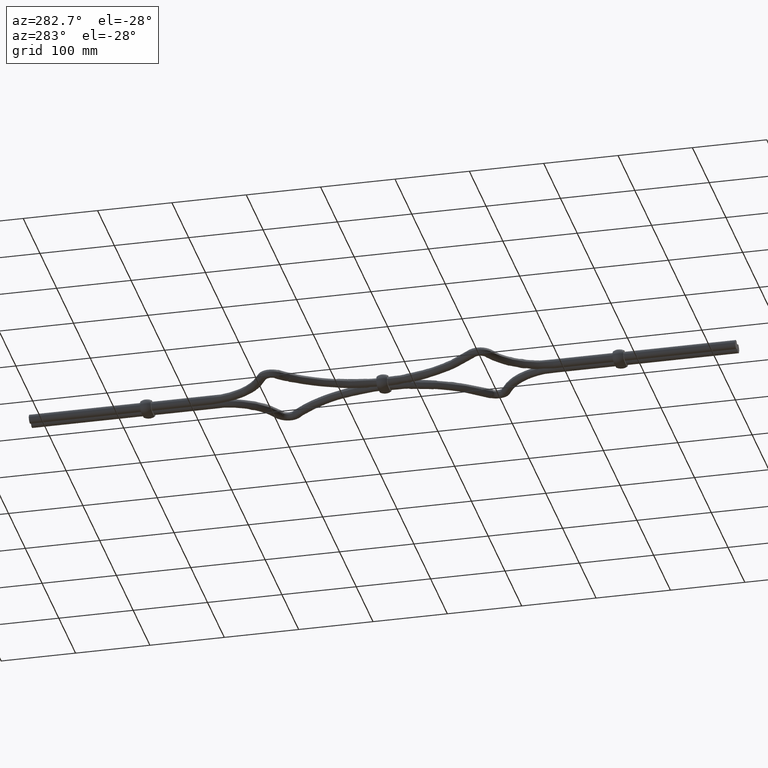
[diagram: clean part render]
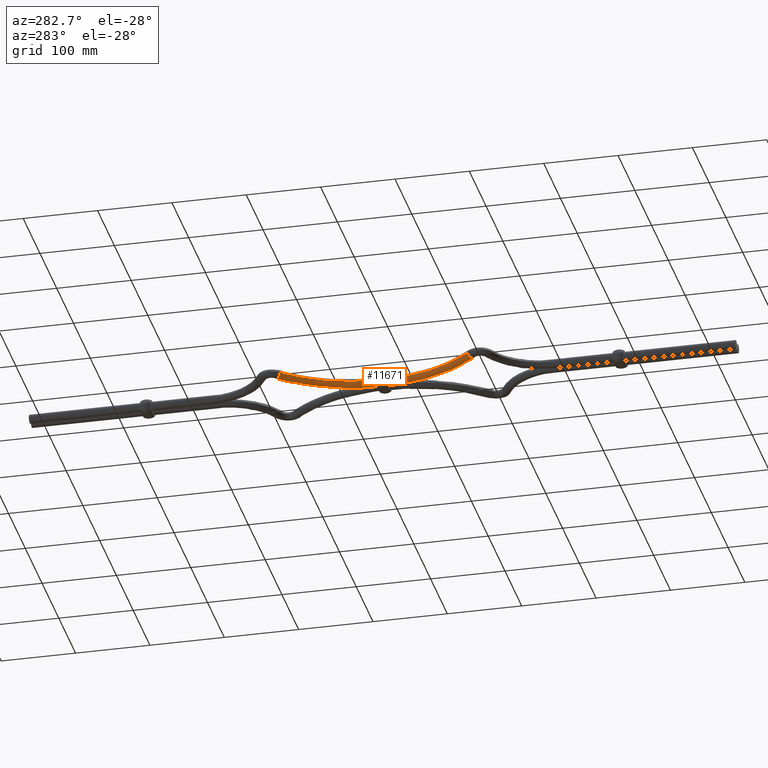
[diagram: same view with one face highlighted and labeled with its STEP entity id]
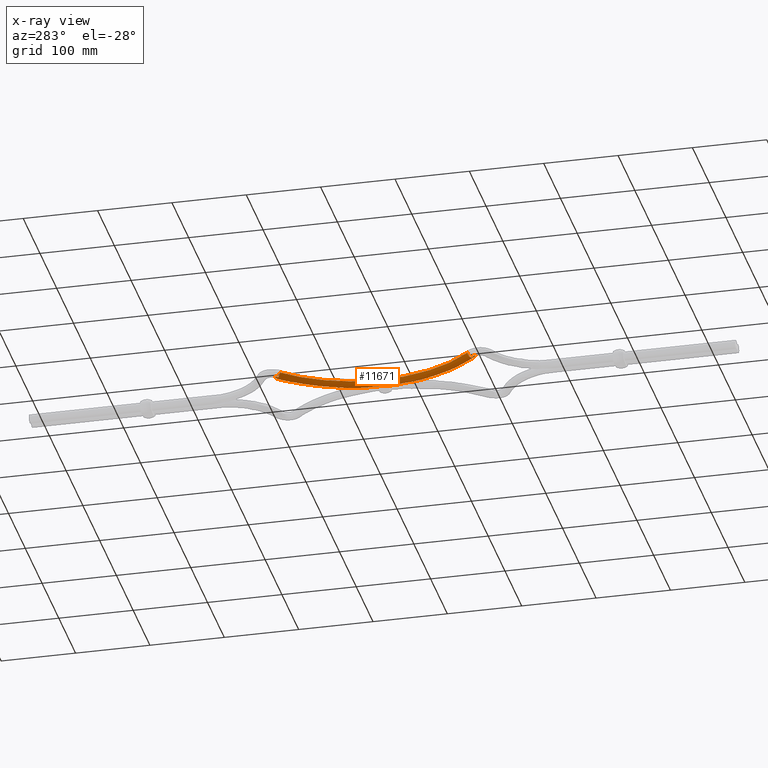
[diagram: x-ray of the same camera — body ghosted, the highlighted face saturated]
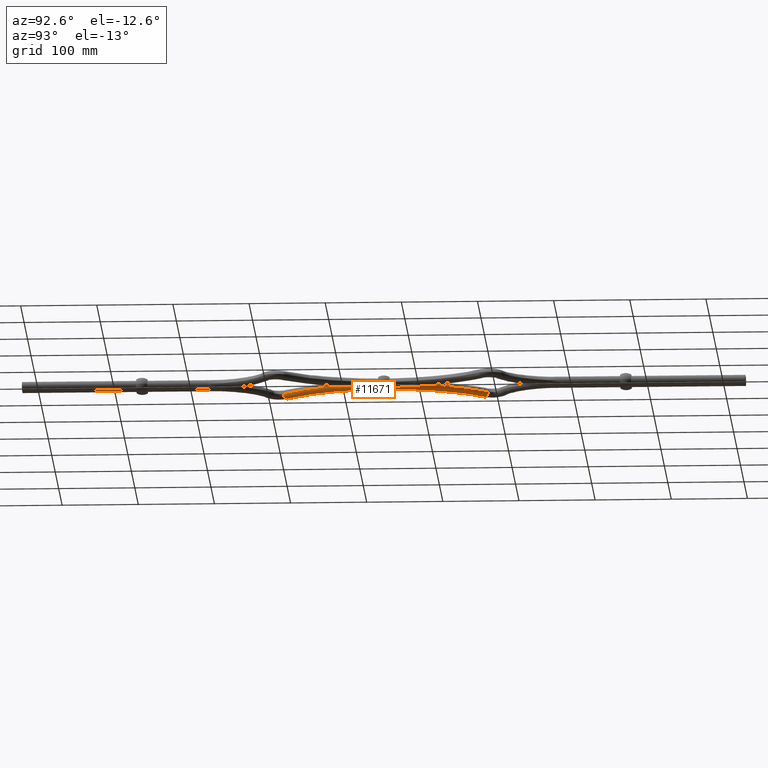
[diagram: same view with one face highlighted and labeled with its STEP entity id]
A machine part, auxiliary view. The second image highlights one B-rep face of the part: STEP entity #11671.
The next image is the same camera in x-ray: the body ghosted, the highlighted face saturated — about 0% of this face is hidden behind the body in this view.
A second angle (auxiliary view) of the same face is appended — the face is thin or edge-on in the first view.
In plain terms, the highlighted face is a freeform B-spline surface patch.
Its self-contained STEP definition (entity closure, byte-faithful):
#38 = CARTESIAN_POINT ( 'NONE',  ( -52.76431385044418900, 584.6073192840663100, -2.546810199468553700E-016 ) ) ;
#42 =( BOUNDED_CURVE ( )  B_SPLINE_CURVE ( 3, ( #16264, #1961, #3283, #12411 ),
 .UNSPECIFIED., .F., .F. ) 
 B_SPLINE_CURVE_WITH_KNOTS ( ( 4, 4 ),
 ( 0.0000000000000000000, 0.5000000000000000000 ),
 .UNSPECIFIED. ) 
 CURVE ( )  GEOMETRIC_REPRESENTATION_ITEM ( )  RATIONAL_B_SPLINE_CURVE ( ( 1.000000000000000000, 0.3333333333333333700, 0.3333333333333333700, 1.000000000000000000 ) ) 
 REPRESENTATION_ITEM ( '' )  );
#66 = VERTEX_POINT ( 'NONE', #7697 ) ;
#102 = CARTESIAN_POINT ( 'NONE',  ( -37.69453535950715000, 352.9993958240679600, 11.99999999999999800 ) ) ;
#162 = CARTESIAN_POINT ( 'NONE',  ( -11.32122275055797700, 468.0799790530458600, 9.446246855534020000E-016 ) ) ;
#215 = CARTESIAN_POINT ( 'NONE',  ( -52.53871511310453700, 566.7014376809919400, -11.99999999999999800 ) ) ;
#284 = CARTESIAN_POINT ( 'NONE',  ( -44.21044338438537800, 324.6310617657428600, -1.456678042497336600E-016 ) ) ;
#416 = CARTESIAN_POINT ( 'NONE',  ( -61.51209363841103100, 323.6071027101809800, 8.527070651964222600E-016 ) ) ;
#593 = CARTESIAN_POINT ( 'NONE',  ( -61.51209363841103100, 323.6071027101809800, 8.527070651964222600E-016 ) ) ;
#1213 = ORIENTED_EDGE ( 'NONE', *, *, #7183, .F. ) ;
#1214 = CARTESIAN_POINT ( 'NONE',  ( -8.442573845707416400, 512.6095959258960900, 1.493061584562548500E-016 ) ) ;
#1391 = CARTESIAN_POINT ( 'NONE',  ( -45.02058306495653300, 323.7560918790249500, 11.99999999999999800 ) ) ;
#1449 = CARTESIAN_POINT ( 'NONE',  ( -11.95635935146578400, 426.7895861820080700, 11.99999999999999500 ) ) ;
#1454 = EDGE_CURVE ( 'NONE', #5816, #2573, #10326, .T. ) ;
#1504 = CARTESIAN_POINT ( 'NONE',  ( -36.81112897796420900, 545.6727808818102400, 7.928642802028406400E-016 ) ) ;
#1569 = CARTESIAN_POINT ( 'NONE',  ( -52.76431385044416800, 315.3926807159342000, -11.99999999999999800 ) ) ;
#1628 = CARTESIAN_POINT ( 'NONE',  ( -9.904187492016657000, 383.5850978585266400, -2.796079487945893200E-016 ) ) ;
#1961 = CARTESIAN_POINT ( 'NONE',  ( -52.76431385044410400, 584.6073192840664200, -11.99999999999999800 ) ) ;
#2523 = EDGE_LOOP ( 'NONE', ( #10363, #3586, #11376, #1213 ) ) ;
#2546 = CARTESIAN_POINT ( 'NONE',  ( -43.79093532513777400, 574.9158596752388300, -2.546810199468553700E-016 ) ) ;
#2573 = VERTEX_POINT ( 'NONE', #14645 ) ;
#2614 = B_SPLINE_CURVE_WITH_KNOTS ( 'NONE', 3,
 ( #11634, #10317, #15555, #7750, #16830, #9071, #1214, #10375, #2546, #11686 ),
 .UNSPECIFIED., .F., .F.,
 ( 4, 1, 1, 1, 1, 1, 1, 4 ),
 ( 0.0000000000000000000, 0.1318829667767272600, 0.2714696696032917700, 0.4162189895839139600, 0.5629400453226535200, 0.7149689085676744800, 0.8616493475476620900, 1.000000000000000000 ),
 .UNSPECIFIED. ) ;
#2723 = CARTESIAN_POINT ( 'NONE',  ( -10.01580799462189300, 383.4600077647600100, 11.99999999999999600 ) ) ;
#2779 = CARTESIAN_POINT ( 'NONE',  ( -19.96296878172156000, 508.8317587339724400, 11.99999999999999800 ) ) ;
#2841 = CARTESIAN_POINT ( 'NONE',  ( -61.51209363841098800, 576.3928972898194200, 9.894690994338144600E-016 ) ) ;
#2902 = CARTESIAN_POINT ( 'NONE',  ( -27.92686689059231100, 346.0969892963714800, -11.99999999999999800 ) ) ;
#2962 = CARTESIAN_POINT ( 'NONE',  ( 0.7264480903153978100, 469.2528909035907500, -2.098366060659508300E-016 ) ) ;
#3252 = CARTESIAN_POINT ( 'NONE',  ( -37.89342209827678700, 352.7839930978241200, 6.658742474111414600E-016 ) ) ;
#3283 = CARTESIAN_POINT ( 'NONE',  ( -61.51209363841097400, 576.3928972898194200, -11.99999999999999800 ) ) ;
#3465 = EDGE_CURVE ( 'NONE', #5816, #66, #11820, .T. ) ;
#3571 = CARTESIAN_POINT ( 'NONE',  ( -61.51209363841103100, 323.6071027101809800, 8.527070651964222600E-016 ) ) ;
#3586 = ORIENTED_EDGE ( 'NONE', *, *, #3465, .T. ) ;
#4004 = CARTESIAN_POINT ( 'NONE',  ( -27.52909341305311800, 346.5277947488592100, 6.891383207554926800E-017 ) ) ;
#4059 = CARTESIAN_POINT ( 'NONE',  ( 0.7489526308204539400, 469.2095557150217400, 12.00000000000000400 ) ) ;
#4115 = CARTESIAN_POINT ( 'NONE',  ( -53.38823112754960200, 567.6189349333177500, 11.99999999999999800 ) ) ;
#4176 = CARTESIAN_POINT ( 'NONE',  ( -52.95822317235221300, 332.8454837599896900, -11.99999999999999800 ) ) ;
#4232 = CARTESIAN_POINT ( 'NONE',  ( 0.01487048980433866900, 425.2228951193138800, -11.99999999999999500 ) ) ;
#4291 = CARTESIAN_POINT ( 'NONE',  ( -26.37292626719997600, 551.8261421891685400, -5.807620071598787500E-017 ) ) ;
#4585 = CARTESIAN_POINT ( 'NONE',  ( -11.96796888191325800, 426.7682406384950600, 7.434499653221958300E-016 ) ) ;
#4990 = CARTESIAN_POINT ( 'NONE',  ( -52.76431385044418900, 584.6073192840663100, -2.546810199468553700E-016 ) ) ;
#5314 = CARTESIAN_POINT ( 'NONE',  ( 0.03808955069929369900, 425.2655862063400000, -8.661885838623813200E-018 ) ) ;
#5373 = CARTESIAN_POINT ( 'NONE',  ( -25.95504449166316300, 551.3734969394684000, 11.99999999999999600 ) ) ;
#5423 = CARTESIAN_POINT ( 'NONE',  ( -61.51209363841105900, 323.6071027101809800, 8.804558837373509700E-016 ) ) ;
#5493 = CARTESIAN_POINT ( 'NONE',  ( -21.22189792242680500, 387.7203721943009800, -11.99999999999999600 ) ) ;
#5545 = CARTESIAN_POINT ( 'NONE',  ( -8.325193241546749300, 512.4778144266439300, -11.99999999999999800 ) ) ;
#5600 = CARTESIAN_POINT ( 'NONE',  ( -52.76431385044418900, 584.6073192840663100, -2.546810199468553700E-016 ) ) ;
#5617 = CARTESIAN_POINT ( 'NONE',  ( -61.51209363841105900, 323.6071027101809800, -11.99999999999999800 ) ) ;
#5816 = VERTEX_POINT ( 'NONE', #3571 ) ;
#5895 = CARTESIAN_POINT ( 'NONE',  ( -19.90427847964116700, 508.7658679843466400, 5.854819210369115600E-016 ) ) ;
#6624 = CARTESIAN_POINT ( 'NONE',  ( -8.442573845707416400, 512.6095959258960900, 1.493061584562548500E-016 ) ) ;
#6678 = CARTESIAN_POINT ( 'NONE',  ( -52.76431385044410400, 584.6073192840664200, 11.99999999999999800 ) ) ;
#6731 = CARTESIAN_POINT ( 'NONE',  ( -37.89342209827678700, 352.7839930978241200, 6.658742474111414600E-016 ) ) ;
#6787 = CARTESIAN_POINT ( 'NONE',  ( -11.33247502081054800, 468.1016466473304300, -12.00000000000000400 ) ) ;
#6843 = CARTESIAN_POINT ( 'NONE',  ( -42.94141931069263800, 573.9983624229132600, -11.99999999999999800 ) ) ;
#7183 = EDGE_CURVE ( 'NONE', #2573, #8695, #2614, .T. ) ;
#7192 = CARTESIAN_POINT ( 'NONE',  ( -52.96347312032709500, 567.1601863071548500, 9.894690994338144600E-016 ) ) ;
#7697 = CARTESIAN_POINT ( 'NONE',  ( -61.51209363841098800, 576.3928972898194200, 9.894690994338144600E-016 ) ) ;
#7724 = EDGE_CURVE ( 'NONE', #8695, #66, #42, .T. ) ;
#7750 = CARTESIAN_POINT ( 'NONE',  ( -9.904187492016657000, 383.5850978585266400, -2.796079487945893200E-016 ) ) ;
#7931 = CARTESIAN_POINT ( 'NONE',  ( -43.79093532513777400, 574.9158596752388300, -2.546810199468553700E-016 ) ) ;
#7991 = CARTESIAN_POINT ( 'NONE',  ( -53.76836285292343100, 331.9705138732717800, 11.99999999999999800 ) ) ;
#8047 = CARTESIAN_POINT ( 'NONE',  ( -11.96796888191325600, 426.7682406384950600, 7.434499653221958300E-016 ) ) ;
#8106 = CARTESIAN_POINT ( 'NONE',  ( -37.02006986573260100, 545.8991035066603700, -11.99999999999999600 ) ) ;
#8169 = CARTESIAN_POINT ( 'NONE',  ( -52.76431385044422500, 315.3926807159342000, -1.456678042497336600E-016 ) ) ;
#8233 = CARTESIAN_POINT ( 'NONE',  ( -52.76431385044418200, 315.3926807159342000, -11.99999999999999800 ) ) ;
#8695 = VERTEX_POINT ( 'NONE', #4990 ) ;
#9071 = CARTESIAN_POINT ( 'NONE',  ( 0.7264480903153978100, 469.2528909035907500, -2.098366060659508300E-016 ) ) ;
#9245 = CARTESIAN_POINT ( 'NONE',  ( -52.76431385044416800, 315.3926807159342000, 11.99999999999999800 ) ) ;
#9303 = CARTESIAN_POINT ( 'NONE',  ( -21.33351842503211100, 387.5952821005344000, 11.99999999999999600 ) ) ;
#9356 = CARTESIAN_POINT ( 'NONE',  ( -19.90427847964116700, 508.7658679843466400, 5.854819210369115600E-016 ) ) ;
#9411 = CARTESIAN_POINT ( 'NONE',  ( -61.51209363841095300, 576.3928972898195300, -11.99999999999999800 ) ) ;
#9468 = CARTESIAN_POINT ( 'NONE',  ( -27.52909341305311800, 346.5277947488592100, 6.891383207554926800E-017 ) ) ;
#10317 = CARTESIAN_POINT ( 'NONE',  ( -44.21044338438537800, 324.6310617657428600, -1.456678042497336600E-016 ) ) ;
#10326 =( BOUNDED_CURVE ( )  B_SPLINE_CURVE ( 3, ( #416, #5617, #8233, #10911 ),
 .UNSPECIFIED., .F., .F. ) 
 B_SPLINE_CURVE_WITH_KNOTS ( ( 4, 4 ),
 ( 0.5000000000000000000, 1.000000000000000000 ),
 .UNSPECIFIED. ) 
 CURVE ( )  GEOMETRIC_REPRESENTATION_ITEM ( )  RATIONAL_B_SPLINE_CURVE ( ( 1.000000000000000000, 0.3333333333333333700, 0.3333333333333333700, 1.000000000000000000 ) ) 
 REPRESENTATION_ITEM ( '' )  );
#10363 = ORIENTED_EDGE ( 'NONE', *, *, #1454, .F. ) ;
#10375 = CARTESIAN_POINT ( 'NONE',  ( -26.37292626719997600, 551.8261421891685400, -5.807620071598787500E-017 ) ) ;
#10553 = CARTESIAN_POINT ( 'NONE',  ( -27.13131993551387200, 346.9586002013469400, 11.99999999999999800 ) ) ;
#10613 = CARTESIAN_POINT ( 'NONE',  ( -11.30997048030553400, 468.0583114587614100, 12.00000000000000400 ) ) ;
#10669 = CARTESIAN_POINT ( 'NONE',  ( -52.96347312032709500, 567.1601863071548500, 9.894690994338144600E-016 ) ) ;
#10727 = CARTESIAN_POINT ( 'NONE',  ( -43.40030370381408900, 325.5060316524608200, -11.99999999999999800 ) ) ;
#10785 = CARTESIAN_POINT ( 'NONE',  ( 0.03808955069929369900, 425.2655862063400000, -8.661885838623813200E-018 ) ) ;
#10911 = CARTESIAN_POINT ( 'NONE',  ( -52.76431385044421100, 315.3926807159342600, -1.179189857088026500E-016 ) ) ;
#11081 = CARTESIAN_POINT ( 'NONE',  ( -53.36329301263781800, 332.4079988166307700, 8.804558837373509700E-016 ) ) ;
#11110 =( BOUNDED_SURFACE ( )  B_SPLINE_SURFACE ( 3, 3, ( 
 ( #11438, #11802, #4004, #13123, #5314, #14429, #6624, #15734, #7931, #38 ),
 ( #9245, #1391, #10553, #2723, #11859, #4059, #13172, #5373, #14489, #6678 ),
 ( #15785, #7991, #102, #9303, #1449, #10613, #2779, #11917, #4115, #13227 ),
 ( #5423, #14549, #6731, #15841, #8047, #162, #9356, #1504, #10669, #2841 ),
 ( #11973, #4176, #13285, #5493, #14601, #6787, #15899, #8106, #215, #9411 ),
 ( #1569, #10727, #2902, #12032, #4232, #13341, #5545, #14666, #6843, #15959 ),
 ( #8169, #284, #9468, #1628, #10785, #2962, #12086, #4291, #13395, #5600 ) ),
 .UNSPECIFIED., .T., .F., .F. ) 
 B_SPLINE_SURFACE_WITH_KNOTS ( ( 4, 3, 4 ),
 ( 4, 1, 1, 1, 1, 1, 1, 4 ),
 ( 0.0000000000000000000, 0.5000000000000000000, 1.000000000000000000 ),
 ( 0.0000000000000000000, 0.1318829667767272600, 0.2714696696032917700, 0.4162189895839139600, 0.5629400453226535200, 0.7149689085676744800, 0.8616493475476620900, 1.000000000000000000 ),
 .UNSPECIFIED. ) 
 GEOMETRIC_REPRESENTATION_ITEM ( )  RATIONAL_B_SPLINE_SURFACE ( (
 ( 1.000000000000000000, 1.000000000000000000, 1.000000000000000000, 1.000000000000000000, 0.9999999999999997800, 0.9999999999999997800, 1.000000000000000000, 1.000000000000000200, 1.000000000000000000, 1.000000000000000000),
 ( 0.3333333333333333700, 0.3333333333333333700, 0.3333333333333333700, 0.3333333333333333700, 0.3333333333333333100, 0.3333333333333333100, 0.3333333333333333700, 0.3333333333333334300, 0.3333333333333333700, 0.3333333333333333700),
 ( 0.3333333333333333700, 0.3333333333333333700, 0.3333333333333333700, 0.3333333333333333700, 0.3333333333333333100, 0.3333333333333333100, 0.3333333333333333700, 0.3333333333333334300, 0.3333333333333333700, 0.3333333333333333700),
 ( 1.000000000000000000, 1.000000000000000000, 1.000000000000000000, 1.000000000000000000, 0.9999999999999997800, 0.9999999999999997800, 1.000000000000000000, 1.000000000000000200, 1.000000000000000000, 1.000000000000000000),
 ( 0.3333333333333333700, 0.3333333333333333700, 0.3333333333333333700, 0.3333333333333333700, 0.3333333333333333100, 0.3333333333333333100, 0.3333333333333333700, 0.3333333333333334300, 0.3333333333333333700, 0.3333333333333333700),
 ( 0.3333333333333333700, 0.3333333333333333700, 0.3333333333333333700, 0.3333333333333333700, 0.3333333333333333100, 0.3333333333333333100, 0.3333333333333333700, 0.3333333333333334300, 0.3333333333333333700, 0.3333333333333333700),
 ( 1.000000000000000000, 1.000000000000000000, 1.000000000000000000, 1.000000000000000000, 0.9999999999999997800, 0.9999999999999997800, 1.000000000000000000, 1.000000000000000200, 1.000000000000000000, 1.000000000000000000) ) ) 
 REPRESENTATION_ITEM ( '' )  SURFACE ( )  );
#11376 = ORIENTED_EDGE ( 'NONE', *, *, #7724, .F. ) ;
#11438 = CARTESIAN_POINT ( 'NONE',  ( -52.76431385044422500, 315.3926807159342000, -1.456678042497336600E-016 ) ) ;
#11634 = CARTESIAN_POINT ( 'NONE',  ( -52.76431385044421100, 315.3926807159342600, -1.179189857088026500E-016 ) ) ;
#11671 = ADVANCED_FACE ( 'NONE', ( #16157 ), #11110, .F. ) ;
#11686 = CARTESIAN_POINT ( 'NONE',  ( -52.76431385044418900, 584.6073192840663100, -2.546810199468553700E-016 ) ) ;
#11802 = CARTESIAN_POINT ( 'NONE',  ( -44.21044338438537800, 324.6310617657428600, -1.456678042497336600E-016 ) ) ;
#11820 = B_SPLINE_CURVE_WITH_KNOTS ( 'NONE', 3,
 ( #593, #11081, #3252, #12379, #4585, #13693, #5895, #14996, #7192, #16285 ),
 .UNSPECIFIED., .F., .F.,
 ( 4, 1, 1, 1, 1, 1, 1, 4 ),
 ( 0.0000000000000000000, 0.1318829667767272600, 0.2714696696032917700, 0.4162189895839139600, 0.5629400453226535200, 0.7149689085676744800, 0.8616493475476620900, 1.000000000000000000 ),
 .UNSPECIFIED. ) ;
#11859 = CARTESIAN_POINT ( 'NONE',  ( 0.06130861159429525100, 425.3082772933659600, 11.99999999999999500 ) ) ;
#11917 = CARTESIAN_POINT ( 'NONE',  ( -36.60218809019579600, 545.4464582569598900, 11.99999999999999600 ) ) ;
#11973 = CARTESIAN_POINT ( 'NONE',  ( -61.51209363841105900, 323.6071027101810400, -11.99999999999999800 ) ) ;
#12032 = CARTESIAN_POINT ( 'NONE',  ( -9.792566989411279000, 383.7101879522933800, -11.99999999999999600 ) ) ;
#12086 = CARTESIAN_POINT ( 'NONE',  ( -8.442573845707416400, 512.6095959258960900, 1.493061584562548500E-016 ) ) ;
#12379 = CARTESIAN_POINT ( 'NONE',  ( -21.27770817372944000, 387.6578271474177200, 1.014396028284849700E-015 ) ) ;
#12411 = CARTESIAN_POINT ( 'NONE',  ( -61.51209363841098800, 576.3928972898194200, 9.894690994338144600E-016 ) ) ;
#13123 = CARTESIAN_POINT ( 'NONE',  ( -9.904187492016657000, 383.5850978585266400, -2.796079487945893200E-016 ) ) ;
#13172 = CARTESIAN_POINT ( 'NONE',  ( -8.559954449868129700, 512.7413774251480200, 11.99999999999999800 ) ) ;
#13227 = CARTESIAN_POINT ( 'NONE',  ( -61.51209363841095300, 576.3928972898195300, 11.99999999999999800 ) ) ;
#13285 = CARTESIAN_POINT ( 'NONE',  ( -38.09230883704637400, 352.5685903715802900, -11.99999999999999800 ) ) ;
#13341 = CARTESIAN_POINT ( 'NONE',  ( 0.7039435498104242800, 469.2962260921596000, -12.00000000000000400 ) ) ;
#13395 = CARTESIAN_POINT ( 'NONE',  ( -43.79093532513777400, 574.9158596752388300, -2.546810199468553700E-016 ) ) ;
#13693 = CARTESIAN_POINT ( 'NONE',  ( -11.32122275055797700, 468.0799790530458600, 9.446246855534020000E-016 ) ) ;
#14429 = CARTESIAN_POINT ( 'NONE',  ( 0.7264480903153978100, 469.2528909035907500, -2.098366060659508300E-016 ) ) ;
#14489 = CARTESIAN_POINT ( 'NONE',  ( -44.64045133958273900, 575.8333569275644100, 11.99999999999999800 ) ) ;
#14549 = CARTESIAN_POINT ( 'NONE',  ( -53.36329301263781800, 332.4079988166307700, 8.804558837373509700E-016 ) ) ;
#14601 = CARTESIAN_POINT ( 'NONE',  ( -11.97957841236076400, 426.7468950949819400, -11.99999999999999500 ) ) ;
#14645 = CARTESIAN_POINT ( 'NONE',  ( -52.76431385044421100, 315.3926807159342600, -1.179189857088026500E-016 ) ) ;
#14666 = CARTESIAN_POINT ( 'NONE',  ( -26.79080804273676700, 552.2787874388691300, -11.99999999999999600 ) ) ;
#14996 = CARTESIAN_POINT ( 'NONE',  ( -36.81112897796420900, 545.6727808818102400, 7.928642802028406400E-016 ) ) ;
#15555 = CARTESIAN_POINT ( 'NONE',  ( -27.52909341305311800, 346.5277947488592100, 6.891383207554926800E-017 ) ) ;
#15734 = CARTESIAN_POINT ( 'NONE',  ( -26.37292626719997600, 551.8261421891685400, -5.807620071598787500E-017 ) ) ;
#15785 = CARTESIAN_POINT ( 'NONE',  ( -61.51209363841105900, 323.6071027101810400, 11.99999999999999800 ) ) ;
#15841 = CARTESIAN_POINT ( 'NONE',  ( -21.27770817372944000, 387.6578271474177200, 1.014396028284849700E-015 ) ) ;
#15899 = CARTESIAN_POINT ( 'NONE',  ( -19.84558817756086700, 508.6999772347203900, -11.99999999999999800 ) ) ;
#15959 = CARTESIAN_POINT ( 'NONE',  ( -52.76431385044410400, 584.6073192840664200, -11.99999999999999800 ) ) ;
#16157 = FACE_OUTER_BOUND ( 'NONE', #2523, .T. ) ;
#16264 = CARTESIAN_POINT ( 'NONE',  ( -52.76431385044418900, 584.6073192840663100, -2.546810199468553700E-016 ) ) ;
#16285 = CARTESIAN_POINT ( 'NONE',  ( -61.51209363841098800, 576.3928972898194200, 9.894690994338144600E-016 ) ) ;
#16830 = CARTESIAN_POINT ( 'NONE',  ( 0.03808955069929369900, 425.2655862063400000, -8.661885838623813200E-018 ) ) ;